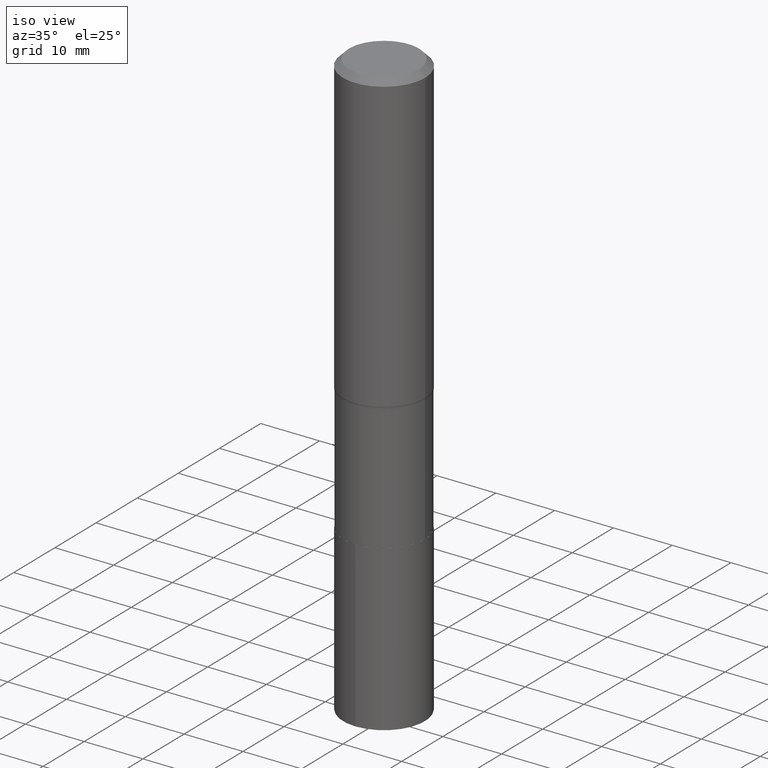
[diagram: clean part render]
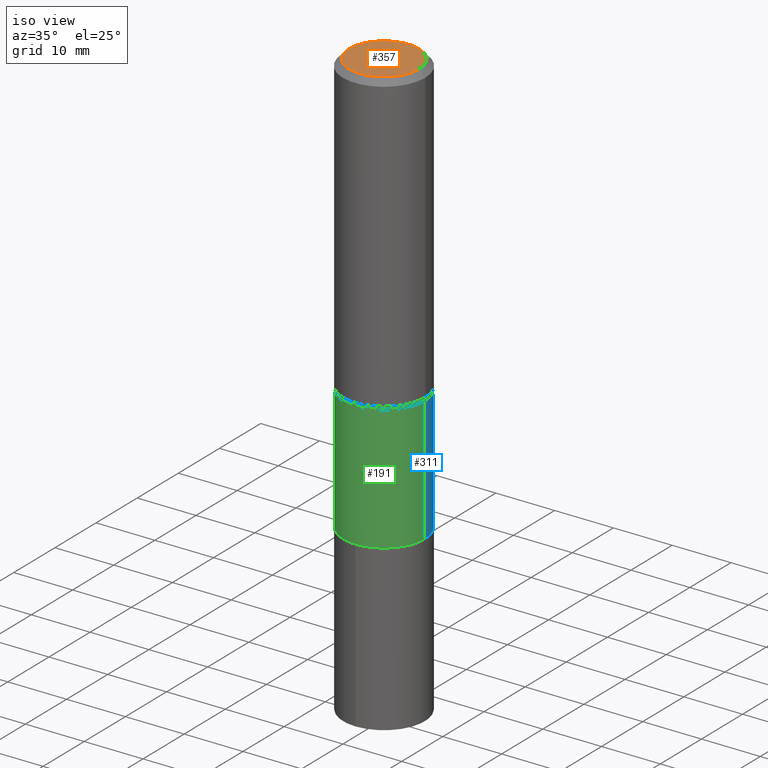
[diagram: same view with three faces highlighted in distinct colors, each labeled with its STEP entity id]
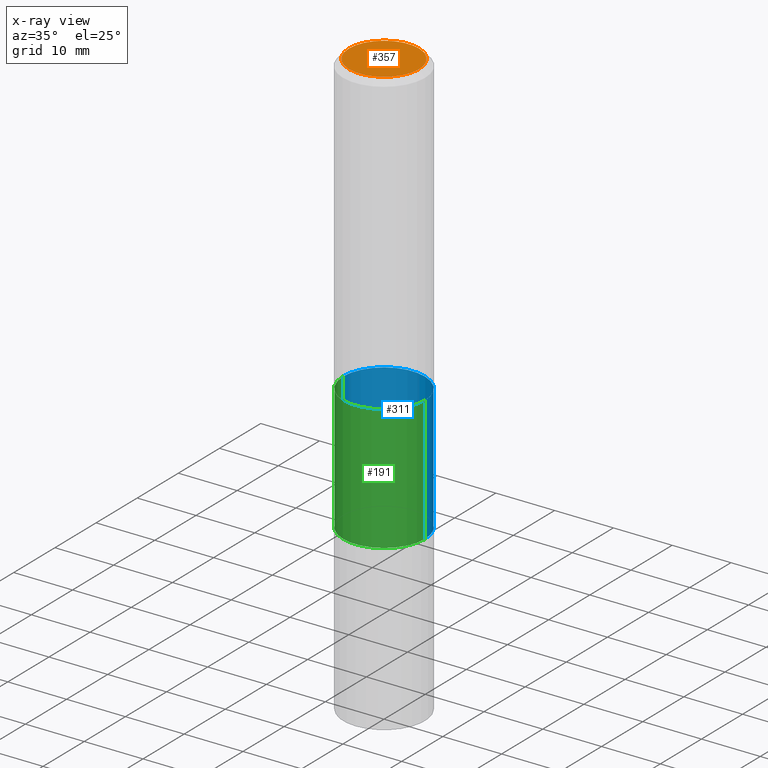
[diagram: x-ray of the same camera — body ghosted, the three highlighted faces saturated]
A machine part, iso view with three faces highlighted in distinct colors.
The next image is the same camera in x-ray (body ghosted, the three faces saturated) — at least one of them is partly hidden behind the body in this view.
Their STEP definitions:

[orange] entity #357 — the highlighted planar face has unit normal (0, -0, -1).
#23 = CARTESIAN_POINT ( 'NONE',  ( -1.002970424325033577E-46, 1.431975951230896486E-32, 4.101342130344485961E-18 ) ) ;
#42 = CARTESIAN_POINT ( 'NONE',  ( -1.002970424325033577E-46, 1.431975951230896486E-32, 4.101342130344485961E-18 ) ) ;
#55 = DIRECTION ( 'NONE',  ( 1.000000000000000000, -6.982962677686267499E-15, 4.876157962347795834E-29 ) ) ;
#113 = DIRECTION ( 'NONE',  ( 1.000000000000000000, -6.982962677686267499E-15, 4.876157962347795834E-29 ) ) ;
#120 = PLANE ( 'NONE',  #280 ) ;
#145 = DIRECTION ( 'NONE',  ( -2.445468806185136597E-29, 3.491481338843145583E-15, 1.000000000000000000 ) ) ;
#162 = CARTESIAN_POINT ( 'NONE',  ( -5.014852121625167883E-47, 7.159879756154482429E-33, 2.050671065172242981E-18 ) ) ;
#165 = VERTEX_POINT ( 'NONE', #249 ) ;
#184 = EDGE_CURVE ( 'NONE', #165, #312, #391, .T. ) ;
#249 = CARTESIAN_POINT ( 'NONE',  ( 0.2342600000000000238, -1.821115673845785155E-15, 4.101342130356573868E-18 ) ) ;
#253 = AXIS2_PLACEMENT_3D ( 'NONE', #42, #145, #113 ) ;
#256 = CARTESIAN_POINT ( 'NONE',  ( -0.2342600000000000238, 1.707997756148671759E-15, 4.101342130332794026E-18 ) ) ;
#280 = AXIS2_PLACEMENT_3D ( 'NONE', #162, #307, #381 ) ;
#307 = DIRECTION ( 'NONE',  ( 2.438088387897960049E-29, -3.491481338843145188E-15, -1.000000000000000000 ) ) ;
#312 = VERTEX_POINT ( 'NONE', #256 ) ;
#333 = EDGE_LOOP ( 'NONE', ( #344, #439 ) ) ;
#337 = DIRECTION ( 'NONE',  ( -2.445468806185136597E-29, 3.491481338843145583E-15, 1.000000000000000000 ) ) ;
#342 = AXIS2_PLACEMENT_3D ( 'NONE', #23, #337, #55 ) ;
#344 = ORIENTED_EDGE ( 'NONE', *, *, #462, .T. ) ;
#357 = ADVANCED_FACE ( 'NONE', ( #442 ), #120, .F. ) ;
#381 = DIRECTION ( 'NONE',  ( -1.000000000000000000, 6.982962677686265922E-15, -4.876176775795935793E-29 ) ) ;
#391 = CIRCLE ( 'NONE', #253, 0.2342600000000000238 ) ;
#439 = ORIENTED_EDGE ( 'NONE', *, *, #184, .T. ) ;
#442 = FACE_OUTER_BOUND ( 'NONE', #333, .T. ) ;
#462 = EDGE_CURVE ( 'NONE', #312, #165, #466, .T. ) ;
#466 = CIRCLE ( 'NONE', #342, 0.2342600000000000238 ) ;

[blue] entity #311 — the highlighted cylindrical surface (partial cylindrical patch) has radius 6.9456 mm, axis along (-0, 0, 1).
#13 = VECTOR ( 'NONE', #318, 39.37007874015748143 ) ;
#29 = VECTOR ( 'NONE', #395, 39.37007874015748143 ) ;
#32 = CARTESIAN_POINT ( 'NONE',  ( 0.2734499999999999709, -1.909491144213309629E-15, 1.333390539341398475E-29 ) ) ;
#53 = CARTESIAN_POINT ( 'NONE',  ( 4.881155737145533024E-29, -6.968996752330918348E-15, -1.995999999999999996 ) ) ;
#65 = EDGE_CURVE ( 'NONE', #278, #130, #281, .T. ) ;
#68 = CIRCLE ( 'NONE', #123, 0.2734500000000000264 ) ;
#87 = ORIENTED_EDGE ( 'NONE', *, *, #180, .T. ) ;
#94 = VERTEX_POINT ( 'NONE', #320 ) ;
#106 = DIRECTION ( 'NONE',  ( 1.000000000000000000, -6.982962677686267499E-15, 4.876176775795935793E-29 ) ) ;
#123 = AXIS2_PLACEMENT_3D ( 'NONE', #352, #138, #329 ) ;
#128 = ORIENTED_EDGE ( 'NONE', *, *, #65, .T. ) ;
#130 = VERTEX_POINT ( 'NONE', #346 ) ;
#138 = DIRECTION ( 'NONE',  ( -2.445468806185136597E-29, 3.491481338843145583E-15, 1.000000000000000000 ) ) ;
#148 = EDGE_CURVE ( 'NONE', #200, #94, #461, .T. ) ;
#159 = DIRECTION ( 'NONE',  ( -2.445468806185136597E-29, 3.491481338843145583E-15, 1.000000000000000000 ) ) ;
#180 = EDGE_CURVE ( 'NONE', #200, #278, #68, .T. ) ;
#189 = CARTESIAN_POINT ( 'NONE',  ( 0.000000000000000000, 0.000000000000000000, 0.000000000000000000 ) ) ;
#200 = VERTEX_POINT ( 'NONE', #433 ) ;
#243 = AXIS2_PLACEMENT_3D ( 'NONE', #53, #159, #413 ) ;
#257 = CYLINDRICAL_SURFACE ( 'NONE', #351, 0.2734499999999999709 ) ;
#258 = ORIENTED_EDGE ( 'NONE', *, *, #427, .F. ) ;
#278 = VERTEX_POINT ( 'NONE', #294 ) ;
#281 = LINE ( 'NONE', #457, #29 ) ;
#294 = CARTESIAN_POINT ( 'NONE',  ( -0.2734500000000000819, -6.489821192704911743E-15, -2.834499999999999353 ) ) ;
#311 = ADVANCED_FACE ( 'NONE', ( #431 ), #257, .T. ) ;
#318 = DIRECTION ( 'NONE',  ( -2.445468806185136877E-29, 3.491481338843145188E-15, 1.000000000000000000 ) ) ;
#320 = CARTESIAN_POINT ( 'NONE',  ( 0.2734499999999999154, -8.878487896544227582E-15, -1.995999999999999996 ) ) ;
#329 = DIRECTION ( 'NONE',  ( 1.000000000000000000, -6.982962677686264344E-15, 0.000000000000000000 ) ) ;
#338 = EDGE_LOOP ( 'NONE', ( #87, #128, #258, #372 ) ) ;
#346 = CARTESIAN_POINT ( 'NONE',  ( -0.2734499999999999154, -6.489821192704912531E-15, -1.995999999999999996 ) ) ;
#351 = AXIS2_PLACEMENT_3D ( 'NONE', #189, #438, #106 ) ;
#352 = CARTESIAN_POINT ( 'NONE',  ( 6.931681331131768733E-29, -9.896603854950894217E-15, -2.834499999999999353 ) ) ;
#372 = ORIENTED_EDGE ( 'NONE', *, *, #148, .F. ) ;
#392 = CIRCLE ( 'NONE', #243, 0.2734499999999999154 ) ;
#395 = DIRECTION ( 'NONE',  ( -2.445468806185136877E-29, 3.491481338843145188E-15, 1.000000000000000000 ) ) ;
#413 = DIRECTION ( 'NONE',  ( 1.000000000000000000, -6.982962677686264344E-15, 0.000000000000000000 ) ) ;
#427 = EDGE_CURVE ( 'NONE', #94, #130, #392, .T. ) ;
#431 = FACE_OUTER_BOUND ( 'NONE', #338, .T. ) ;
#433 = CARTESIAN_POINT ( 'NONE',  ( 0.2734500000000000264, -1.180609499916420345E-14, -2.834499999999999353 ) ) ;
#438 = DIRECTION ( 'NONE',  ( -2.445468806185136597E-29, 3.491481338843145583E-15, 1.000000000000000000 ) ) ;
#457 = CARTESIAN_POINT ( 'NONE',  ( -0.2734499999999999709, 1.942979110935993751E-15, -1.345082800430203888E-29 ) ) ;
#461 = LINE ( 'NONE', #32, #13 ) ;

[green] entity #191 — the highlighted cylindrical surface (partial cylindrical patch) has radius 6.9456 mm, axis along (-0, 0, 1).
#11 = DIRECTION ( 'NONE',  ( -2.445468806185136597E-29, 3.491481338843145583E-15, 1.000000000000000000 ) ) ;
#13 = VECTOR ( 'NONE', #318, 39.37007874015748143 ) ;
#29 = VECTOR ( 'NONE', #395, 39.37007874015748143 ) ;
#32 = CARTESIAN_POINT ( 'NONE',  ( 0.2734499999999999709, -1.909491144213309629E-15, 1.333390539341398475E-29 ) ) ;
#52 = CIRCLE ( 'NONE', #420, 0.2734500000000000264 ) ;
#65 = EDGE_CURVE ( 'NONE', #278, #130, #281, .T. ) ;
#93 = DIRECTION ( 'NONE',  ( -2.445468806185136597E-29, 3.491481338843145583E-15, 1.000000000000000000 ) ) ;
#94 = VERTEX_POINT ( 'NONE', #320 ) ;
#119 = ORIENTED_EDGE ( 'NONE', *, *, #269, .F. ) ;
#130 = VERTEX_POINT ( 'NONE', #346 ) ;
#148 = EDGE_CURVE ( 'NONE', #200, #94, #461, .T. ) ;
#153 = DIRECTION ( 'NONE',  ( 1.000000000000000000, -6.982962677686267499E-15, 4.876176775795935793E-29 ) ) ;
#155 = DIRECTION ( 'NONE',  ( 1.000000000000000000, -6.982962677686264344E-15, 0.000000000000000000 ) ) ;
#170 = ORIENTED_EDGE ( 'NONE', *, *, #148, .T. ) ;
#190 = DIRECTION ( 'NONE',  ( -2.445468806185136597E-29, 3.491481338843145583E-15, 1.000000000000000000 ) ) ;
#191 = ADVANCED_FACE ( 'NONE', ( #401 ), #400, .T. ) ;
#200 = VERTEX_POINT ( 'NONE', #433 ) ;
#204 = EDGE_LOOP ( 'NONE', ( #272, #452, #170, #119 ) ) ;
#225 = CARTESIAN_POINT ( 'NONE',  ( 4.881155737145533024E-29, -6.968996752330918348E-15, -1.995999999999999996 ) ) ;
#259 = AXIS2_PLACEMENT_3D ( 'NONE', #225, #11, #155 ) ;
#269 = EDGE_CURVE ( 'NONE', #130, #94, #360, .T. ) ;
#272 = ORIENTED_EDGE ( 'NONE', *, *, #65, .F. ) ;
#278 = VERTEX_POINT ( 'NONE', #294 ) ;
#281 = LINE ( 'NONE', #457, #29 ) ;
#294 = CARTESIAN_POINT ( 'NONE',  ( -0.2734500000000000819, -6.489821192704911743E-15, -2.834499999999999353 ) ) ;
#297 = CARTESIAN_POINT ( 'NONE',  ( 0.000000000000000000, 0.000000000000000000, 0.000000000000000000 ) ) ;
#301 = CARTESIAN_POINT ( 'NONE',  ( 6.931681331131768733E-29, -9.896603854950894217E-15, -2.834499999999999353 ) ) ;
#318 = DIRECTION ( 'NONE',  ( -2.445468806185136877E-29, 3.491481338843145188E-15, 1.000000000000000000 ) ) ;
#320 = CARTESIAN_POINT ( 'NONE',  ( 0.2734499999999999154, -8.878487896544227582E-15, -1.995999999999999996 ) ) ;
#339 = EDGE_CURVE ( 'NONE', #278, #200, #52, .T. ) ;
#346 = CARTESIAN_POINT ( 'NONE',  ( -0.2734499999999999154, -6.489821192704912531E-15, -1.995999999999999996 ) ) ;
#360 = CIRCLE ( 'NONE', #259, 0.2734499999999999154 ) ;
#383 = AXIS2_PLACEMENT_3D ( 'NONE', #297, #190, #153 ) ;
#395 = DIRECTION ( 'NONE',  ( -2.445468806185136877E-29, 3.491481338843145188E-15, 1.000000000000000000 ) ) ;
#400 = CYLINDRICAL_SURFACE ( 'NONE', #383, 0.2734499999999999709 ) ;
#401 = FACE_OUTER_BOUND ( 'NONE', #204, .T. ) ;
#420 = AXIS2_PLACEMENT_3D ( 'NONE', #301, #93, #440 ) ;
#433 = CARTESIAN_POINT ( 'NONE',  ( 0.2734500000000000264, -1.180609499916420345E-14, -2.834499999999999353 ) ) ;
#440 = DIRECTION ( 'NONE',  ( 1.000000000000000000, -6.982962677686264344E-15, 0.000000000000000000 ) ) ;
#452 = ORIENTED_EDGE ( 'NONE', *, *, #339, .T. ) ;
#457 = CARTESIAN_POINT ( 'NONE',  ( -0.2734499999999999709, 1.942979110935993751E-15, -1.345082800430203888E-29 ) ) ;
#461 = LINE ( 'NONE', #32, #13 ) ;